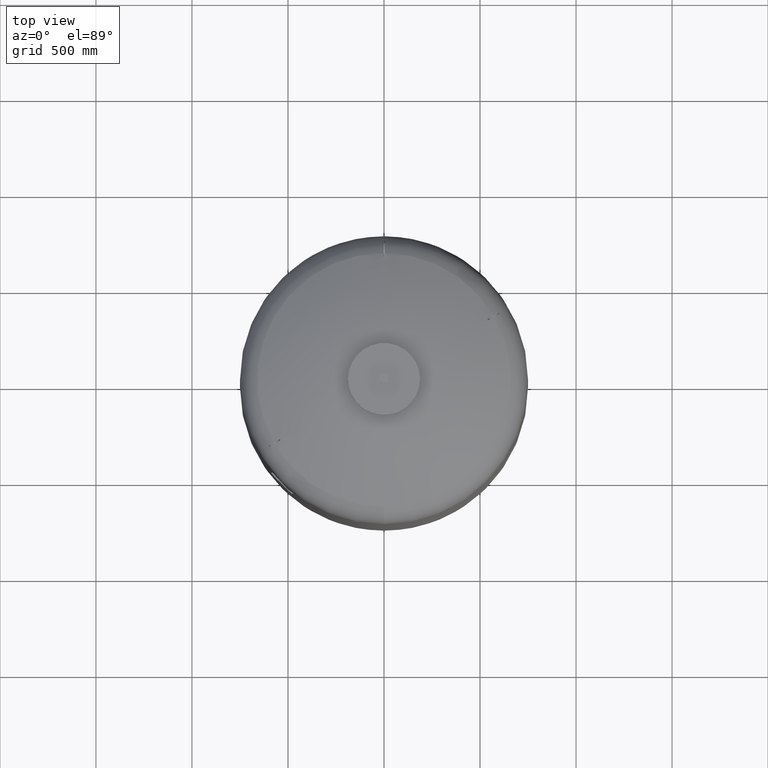
[diagram: clean part render]
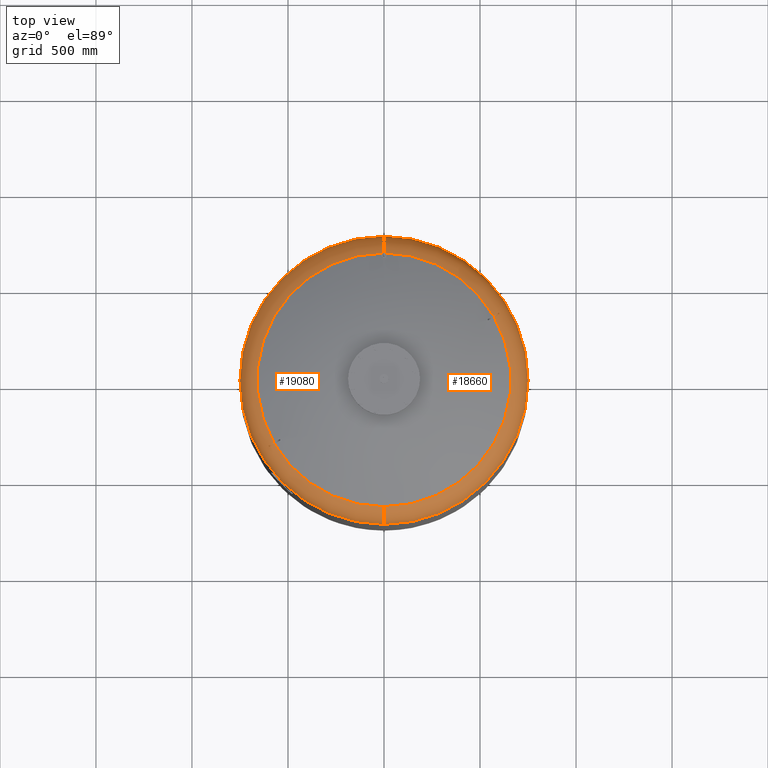
[diagram: same view with one multi-face feature highlighted, each face labeled with its STEP entity id]
A machine part, top view. The highlighted faces form ONE feature: a constant-radius fillet chain: 2 tangent blend faces with common blend radius 159 mm. The faces share edges in the B-rep.
Their STEP definitions:
[1] entity #18660 (Torus):
#18460=CARTESIAN_POINT('',(750.0,-5.423428E-014,2679.762332584101800));
#18461=VERTEX_POINT('',#18460);
#18485=CARTESIAN_POINT('',(1.267436E-013,750.0,2679.762332584101800));
#18486=VERTEX_POINT('',#18485);
#18494=CARTESIAN_POINT('',(1.459986E-014,-5.423428E-014,2679.762332584101800));
#18495=DIRECTION('',(0.0,0.0,-1.0));
#18496=DIRECTION('',(1.0,0.0,0.0));
#18497=AXIS2_PLACEMENT_3D('',#18494,#18495,#18496);
#18498=CIRCLE('',#18497,750.0);
#18499=EDGE_CURVE('',#18486,#18461,#18498,.T.);
#18567=CARTESIAN_POINT('',(3.489809E-014,-5.423428E-014,2679.762332584101800));
#18568=DIRECTION('',(4.945121E-017,-1.836970E-016,-1.0));
#18569=DIRECTION('',(0.0,-1.0,0.0));
#18570=AXIS2_PLACEMENT_3D('',#18567,#18568,#18569);
#18571=TOROIDAL_SURFACE('',#18570,591.0,159.0);
#18572=CARTESIAN_POINT('',(3.489809E-014,-750.0,2679.762332584101800));
#18573=VERTEX_POINT('',#18572);
#18574=CARTESIAN_POINT('',(2.782883E-014,-660.606666666666800,2822.716562866229200));
#18575=VERTEX_POINT('',#18574);
#18576=CARTESIAN_POINT('',(3.489809E-014,-591.0,2679.762332584101800));
#18577=DIRECTION('',(-1.0,0.0,0.0));
#18578=DIRECTION('',(0.0,-1.0,0.0));
#18579=AXIS2_PLACEMENT_3D('',#18576,#18577,#18578);
#18580=CIRCLE('',#18579,159.0);
#18581=EDGE_CURVE('',#18573,#18575,#18580,.T.);
#18582=ORIENTED_EDGE('',*,*,#18581,.F.);
#18583=CARTESIAN_POINT('',(1.459986E-014,-5.423428E-014,2679.762332584101800));
#18584=DIRECTION('',(0.0,0.0,-1.0));
#18585=DIRECTION('',(1.0,0.0,0.0));
#18586=AXIS2_PLACEMENT_3D('',#18583,#18584,#18585);
#18587=CIRCLE('',#18586,750.0);
#18588=EDGE_CURVE('',#18461,#18573,#18587,.T.);
#18589=ORIENTED_EDGE('',*,*,#18588,.F.);
#18590=ORIENTED_EDGE('',*,*,#18499,.F.);
#18591=CARTESIAN_POINT('',(1.087271E-013,660.606666666666800,2822.716562866229200));
#18592=VERTEX_POINT('',#18591);
#18593=CARTESIAN_POINT('',(1.072723E-013,591.0,2679.762332584101800));
#18594=DIRECTION('',(1.0,0.0,0.0));
#18595=DIRECTION('',(0.0,1.0,0.0));
#18596=AXIS2_PLACEMENT_3D('',#18593,#18594,#18595);
#18597=CIRCLE('',#18596,159.0);
#18598=EDGE_CURVE('',#18486,#18592,#18597,.T.);
#18599=ORIENTED_EDGE('',*,*,#18598,.T.);
#18600=CARTESIAN_POINT('',(570.596255916202270,332.898003566943030,2822.716562866229200));
#18601=VERTEX_POINT('',#18600);
#18602=CARTESIAN_POINT('',(7.530601E-015,-2.797401E-014,2822.716562866229200));
#18603=DIRECTION('',(0.0,0.0,-1.0));
#18604=DIRECTION('',(1.0,0.0,0.0));
#18605=AXIS2_PLACEMENT_3D('',#18602,#18603,#18604);
#18606=CIRCLE('',#18605,660.606666666666800);
#18607=EDGE_CURVE('',#18592,#18601,#18606,.T.);
#18608=ORIENTED_EDGE('',*,*,#18607,.T.);
#18609=CARTESIAN_POINT('',(588.588482349337030,343.285820341434260,2810.575471650438900));
#18610=VERTEX_POINT('',#18609);
#18611=CARTESIAN_POINT('',(570.596255916202270,332.898003566943030,2822.716562866229200));
#18612=CARTESIAN_POINT('',(572.054041405254220,333.739656411467930,2821.896943261032400));
#18613=CARTESIAN_POINT('',(573.514867502697370,334.583064752065810,2821.038760350182700));
#18614=CARTESIAN_POINT('',(576.976511612975400,336.581645910973690,2818.912932457119000));
#18615=CARTESIAN_POINT('',(578.974781685762880,337.735347675411160,2817.612126014599200));
#18616=CARTESIAN_POINT('',(582.931774475123920,340.019918527530190,2814.881544856047600));
#18617=CARTESIAN_POINT('',(584.890496100696050,341.150786985321820,2813.451768031998700));
#18618=CARTESIAN_POINT('',(587.410277309621960,342.605583344594150,2811.507652363015000));
#18619=CARTESIAN_POINT('',(588.001091399301120,342.946690018311470,2811.044094471851200));
#18620=CARTESIAN_POINT('',(588.588482349337030,343.285820341434260,2810.575471650438900));
#18621=B_SPLINE_CURVE_WITH_KNOTS('',3,(#18611,#18612,#18613,#18614,#18615,#18616,#18617,#18618,#18619,#18620),.UNSPECIFIED.,.F.,.U.,(4,2,2,2,4),(774.656358350488740,780.010685689572260,787.369273058092740,794.727860426613230,796.996990205935960),.UNSPECIFIED.);
#18622=EDGE_CURVE('',#18601,#18610,#18621,.T.);
#18623=ORIENTED_EDGE('',*,*,#18622,.T.);
#18624=CARTESIAN_POINT('',(591.588482349336690,338.089667918727570,2810.575471650438900));
#18625=VERTEX_POINT('',#18624);
#18626=CARTESIAN_POINT('',(588.588482349337030,343.285820341434260,2810.575471650438900));
#18627=CARTESIAN_POINT('',(589.090111222559810,342.418391231101340,2810.578030124753200));
#18628=CARTESIAN_POINT('',(589.590425441357980,341.552525995023070,2810.579301453786200));
#18629=CARTESIAN_POINT('',(590.089401200233620,340.688274628905390,2810.579301453786200));
#18630=CARTESIAN_POINT('',(590.588376959112570,339.824023262781680,2810.579301453786200));
#18631=CARTESIAN_POINT('',(591.088081140414260,338.957805821382750,2810.578030124753200));
#18632=CARTESIAN_POINT('',(591.588482349336690,338.089667918727570,2810.575471650438900));
#18633=B_SPLINE_CURVE_WITH_KNOTS('',3,(#18626,#18627,#18628,#18629,#18630,#18631,#18632),.UNSPECIFIED.,.F.,.U.,(4,3,4),(-2.993854553253430,0.0,2.993854553273963),.UNSPECIFIED.);
#18634=EDGE_CURVE('',#18610,#18625,#18633,.T.);
#18635=ORIENTED_EDGE('',*,*,#18634,.T.);
#18636=CARTESIAN_POINT('',(573.596255916202270,327.701851144236400,2822.716562866229200));
#18637=VERTEX_POINT('',#18636);
#18638=CARTESIAN_POINT('',(591.588482349336690,338.089667918727570,2810.575471650438900));
#18639=CARTESIAN_POINT('',(591.001034993602270,337.750505029759610,2811.044139472540300));
#18640=CARTESIAN_POINT('',(590.410163811151510,337.409365393515030,2811.507741414689900));
#18641=CARTESIAN_POINT('',(587.890327860486420,335.954537429084780,2813.451893026950100));
#18642=CARTESIAN_POINT('',(585.931609407500670,334.823670802986780,2814.881663004374300));
#18643=CARTESIAN_POINT('',(581.974623379374860,332.539103854468750,2817.612231014925300));
#18644=CARTESIAN_POINT('',(579.976356895234860,331.385404161938030,2818.913031156073000));
#18645=CARTESIAN_POINT('',(576.514766784393940,329.386854179619720,2821.038819520509200));
#18646=CARTESIAN_POINT('',(575.053991207979040,328.543475007350930,2821.896971483751700));
#18647=CARTESIAN_POINT('',(573.596255916202270,327.701851144236400,2822.716562866229200));
#18648=B_SPLINE_CURVE_WITH_KNOTS('',3,(#18638,#18639,#18640,#18641,#18642,#18643,#18644,#18645,#18646,#18647),.UNSPECIFIED.,.F.,.U.,(4,2,2,2,4),(144.901644365231360,147.170992146182750,154.529560626149700,161.888129106116650,167.242268222433860),.UNSPECIFIED.);
#18649=EDGE_CURVE('',#18625,#18637,#18648,.T.);
#18650=ORIENTED_EDGE('',*,*,#18649,.T.);
#18651=CARTESIAN_POINT('',(7.530601E-015,-2.797401E-014,2822.716562866229200));
#18652=DIRECTION('',(0.0,0.0,-1.0));
#18653=DIRECTION('',(1.0,0.0,0.0));
#18654=AXIS2_PLACEMENT_3D('',#18651,#18652,#18653);
#18655=CIRCLE('',#18654,660.606666666666800);
#18656=EDGE_CURVE('',#18637,#18575,#18655,.T.);
#18657=ORIENTED_EDGE('',*,*,#18656,.T.);
#18658=EDGE_LOOP('',(#18582,#18589,#18590,#18599,#18608,#18623,#18635,#18650,#18657));
#18659=FACE_OUTER_BOUND('',#18658,.T.);
#18660=ADVANCED_FACE('',(#18659),#18571,.T.);
[2] entity #19080 (Torus):
#18477=CARTESIAN_POINT('',(-750.0,3.761120E-014,2679.762332584101800));
#18478=VERTEX_POINT('',#18477);
#18485=CARTESIAN_POINT('',(1.267436E-013,750.0,2679.762332584101800));
#18486=VERTEX_POINT('',#18485);
#18487=CARTESIAN_POINT('',(1.459986E-014,-5.423428E-014,2679.762332584101800));
#18488=DIRECTION('',(0.0,0.0,-1.0));
#18489=DIRECTION('',(1.0,0.0,0.0));
#18490=AXIS2_PLACEMENT_3D('',#18487,#18488,#18489);
#18491=CIRCLE('',#18490,750.0);
#18492=EDGE_CURVE('',#18478,#18486,#18491,.T.);
#18572=CARTESIAN_POINT('',(3.489809E-014,-750.0,2679.762332584101800));
#18573=VERTEX_POINT('',#18572);
#18574=CARTESIAN_POINT('',(2.782883E-014,-660.606666666666800,2822.716562866229200));
#18575=VERTEX_POINT('',#18574);
#18576=CARTESIAN_POINT('',(3.489809E-014,-591.0,2679.762332584101800));
#18577=DIRECTION('',(-1.0,0.0,0.0));
#18578=DIRECTION('',(0.0,-1.0,0.0));
#18579=AXIS2_PLACEMENT_3D('',#18576,#18577,#18578);
#18580=CIRCLE('',#18579,159.0);
#18581=EDGE_CURVE('',#18573,#18575,#18580,.T.);
#18591=CARTESIAN_POINT('',(1.087271E-013,660.606666666666800,2822.716562866229200));
#18592=VERTEX_POINT('',#18591);
#18593=CARTESIAN_POINT('',(1.072723E-013,591.0,2679.762332584101800));
#18594=DIRECTION('',(1.0,0.0,0.0));
#18595=DIRECTION('',(0.0,1.0,0.0));
#18596=AXIS2_PLACEMENT_3D('',#18593,#18594,#18595);
#18597=CIRCLE('',#18596,159.0);
#18598=EDGE_CURVE('',#18486,#18592,#18597,.T.);
#18844=CARTESIAN_POINT('',(-570.596255916196580,-332.898003566952920,2822.716562866229700));
#18845=VERTEX_POINT('',#18844);
#18846=CARTESIAN_POINT('',(-588.588482349331340,-343.285820341443810,2810.575471650438900));
#18847=VERTEX_POINT('',#18846);
#18848=CARTESIAN_POINT('',(-570.596255916196580,-332.898003566952920,2822.716562866229700));
#18849=CARTESIAN_POINT('',(-572.053991207973350,-333.739627430067460,2821.896971483751700));
#18850=CARTESIAN_POINT('',(-573.514766784388030,-334.583006602336130,2821.038819520509200));
#18851=CARTESIAN_POINT('',(-576.976356895228950,-336.581556584654270,2818.913031156073000));
#18852=CARTESIAN_POINT('',(-578.974623379368950,-337.735256277185040,2817.612231014925300));
#18853=CARTESIAN_POINT('',(-582.931609407494880,-340.019823225703130,2814.881663004374300));
#18854=CARTESIAN_POINT('',(-584.890327860480620,-341.150689851801190,2813.451893026950500));
#18855=CARTESIAN_POINT('',(-587.410163811145820,-342.605517816231330,2811.507741414689900));
#18856=CARTESIAN_POINT('',(-588.001034993596930,-342.946657452475790,2811.044139472540300));
#18857=CARTESIAN_POINT('',(-588.588482349331340,-343.285820341443810,2810.575471650438900));
#18858=B_SPLINE_CURVE_WITH_KNOTS('',3,(#18848,#18849,#18850,#18851,#18852,#18853,#18854,#18855,#18856,#18857),.UNSPECIFIED.,.F.,.U.,(4,2,2,2,4),(774.656357685334110,780.010496801651020,787.369065281617960,794.727633761584910,796.996981542536560),.UNSPECIFIED.);
#18859=EDGE_CURVE('',#18845,#18847,#18858,.T.);
#18961=CARTESIAN_POINT('',(-591.588482349331340,-338.089667918737230,2810.575471650438900));
#18962=VERTEX_POINT('',#18961);
#18963=CARTESIAN_POINT('',(-588.588482349331340,-343.285820341443810,2810.575471650438900));
#18964=CARTESIAN_POINT('',(-589.090111222557650,-342.418391231104920,2810.578030124753200));
#18965=CARTESIAN_POINT('',(-589.590425441359340,-341.552525995020690,2810.579301453786200));
#18966=CARTESIAN_POINT('',(-590.089401200238290,-340.688274628897030,2810.579301453786200));
#18967=CARTESIAN_POINT('',(-590.588376959113930,-339.824023262779290,2810.579301453786200));
#18968=CARTESIAN_POINT('',(-591.088081140412330,-338.957805821386390,2810.578030124753200));
#18969=CARTESIAN_POINT('',(-591.588482349331340,-338.089667918737230,2810.575471650438900));
#18970=B_SPLINE_CURVE_WITH_KNOTS('',3,(#18963,#18964,#18965,#18966,#18967,#18968,#18969),.UNSPECIFIED.,.F.,.U.,(4,3,4),(-2.993854553274037,0.0,2.993854553253479),.UNSPECIFIED.);
#18971=EDGE_CURVE('',#18847,#18962,#18970,.T.);
#18996=CARTESIAN_POINT('',(-573.596255916196580,-327.701851144246290,2822.716562866229700));
#18997=VERTEX_POINT('',#18996);
#18998=CARTESIAN_POINT('',(-591.588482349331340,-338.089667918737230,2810.575471650438900));
#18999=CARTESIAN_POINT('',(-591.001091399295430,-337.750537595614450,2811.044094471851200));
#19000=CARTESIAN_POINT('',(-590.410277309616280,-337.409430921897070,2811.507652363015000));
#19001=CARTESIAN_POINT('',(-587.890496100690370,-335.954634562624850,2813.451768031998700));
#19002=CARTESIAN_POINT('',(-585.931774475118230,-334.823766104833230,2814.881544856047600));
#19003=CARTESIAN_POINT('',(-581.974781685757190,-332.539195252714250,2817.612126014599200));
#19004=CARTESIAN_POINT('',(-579.976511612969600,-331.385493488276780,2818.912932457119000));
#19005=CARTESIAN_POINT('',(-576.514867502691460,-329.386912329369070,2821.038760350182700));
#19006=CARTESIAN_POINT('',(-575.054041405248540,-328.543503988771140,2821.896943261032400));
#19007=CARTESIAN_POINT('',(-573.596255916196580,-327.701851144246290,2822.716562866229700));
#19008=B_SPLINE_CURVE_WITH_KNOTS('',3,(#18998,#18999,#19000,#19001,#19002,#19003,#19004,#19005,#19006,#19007),.UNSPECIFIED.,.F.,.U.,(4,2,2,2,4),(144.901635701804910,147.170765481127490,154.529352849647950,161.887940218168410,167.242267557251490),.UNSPECIFIED.);
#19009=EDGE_CURVE('',#18962,#18997,#19008,.T.);
#19046=CARTESIAN_POINT('',(3.489809E-014,-5.423428E-014,2679.762332584101800));
#19047=DIRECTION('',(4.945121E-017,-1.836970E-016,-1.0));
#19048=DIRECTION('',(0.0,-1.0,0.0));
#19049=AXIS2_PLACEMENT_3D('',#19046,#19047,#19048);
#19050=TOROIDAL_SURFACE('',#19049,591.0,159.0);
#19051=ORIENTED_EDGE('',*,*,#18581,.T.);
#19052=CARTESIAN_POINT('',(7.530601E-015,-2.797401E-014,2822.716562866229200));
#19053=DIRECTION('',(0.0,0.0,-1.0));
#19054=DIRECTION('',(1.0,0.0,0.0));
#19055=AXIS2_PLACEMENT_3D('',#19052,#19053,#19054);
#19056=CIRCLE('',#19055,660.606666666666800);
#19057=EDGE_CURVE('',#18575,#18845,#19056,.T.);
#19058=ORIENTED_EDGE('',*,*,#19057,.T.);
#19059=ORIENTED_EDGE('',*,*,#18859,.T.);
#19060=ORIENTED_EDGE('',*,*,#18971,.T.);
#19061=ORIENTED_EDGE('',*,*,#19009,.T.);
#19062=CARTESIAN_POINT('',(7.530601E-015,-2.797401E-014,2822.716562866229200));
#19063=DIRECTION('',(0.0,0.0,-1.0));
#19064=DIRECTION('',(1.0,0.0,0.0));
#19065=AXIS2_PLACEMENT_3D('',#19062,#19063,#19064);
#19066=CIRCLE('',#19065,660.606666666666800);
#19067=EDGE_CURVE('',#18997,#18592,#19066,.T.);
#19068=ORIENTED_EDGE('',*,*,#19067,.T.);
#19069=ORIENTED_EDGE('',*,*,#18598,.F.);
#19070=ORIENTED_EDGE('',*,*,#18492,.F.);
#19071=CARTESIAN_POINT('',(1.459986E-014,-5.423428E-014,2679.762332584101800));
#19072=DIRECTION('',(0.0,0.0,-1.0));
#19073=DIRECTION('',(1.0,0.0,0.0));
#19074=AXIS2_PLACEMENT_3D('',#19071,#19072,#19073);
#19075=CIRCLE('',#19074,750.0);
#19076=EDGE_CURVE('',#18573,#18478,#19075,.T.);
#19077=ORIENTED_EDGE('',*,*,#19076,.F.);
#19078=EDGE_LOOP('',(#19051,#19058,#19059,#19060,#19061,#19068,#19069,#19070,#19077));
#19079=FACE_OUTER_BOUND('',#19078,.T.);
#19080=ADVANCED_FACE('',(#19079),#19050,.T.);